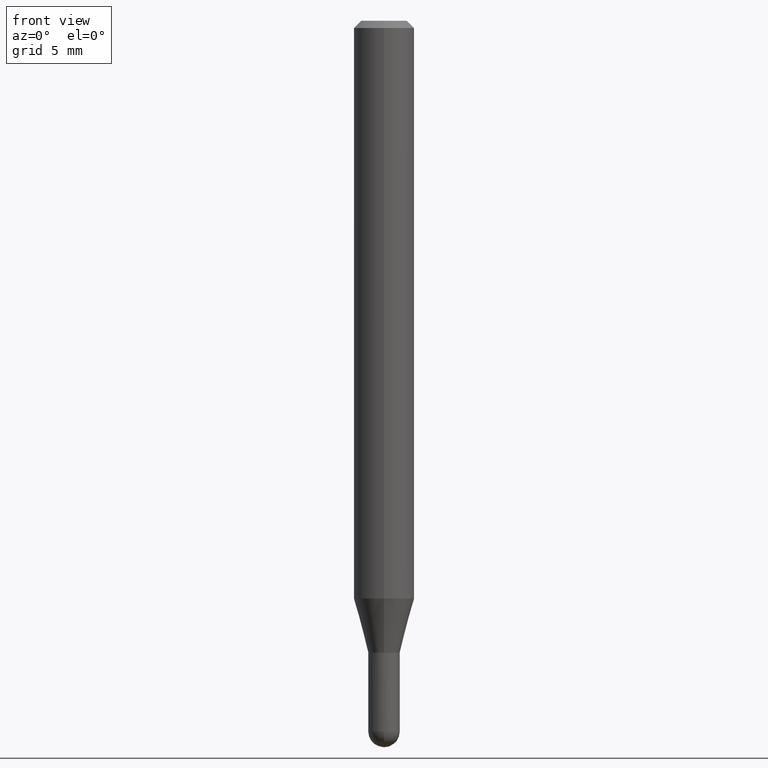
[diagram: clean part render]
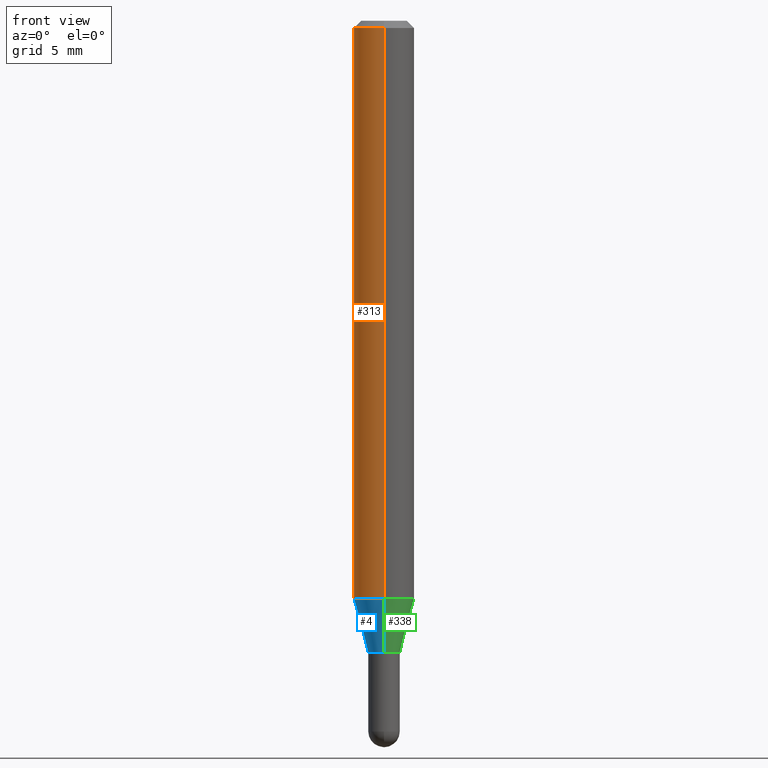
[diagram: same view with three faces highlighted in distinct colors, each labeled with its STEP entity id]
A machine part, front view with three faces highlighted in distinct colors.
Their STEP definitions:

[orange] entity #313 — the highlighted cylindrical surface (edge-blend (fillet) strip) has radius 1.5875 mm, axis along (-0, 0, 1).
#1 = CARTESIAN_POINT ( 'NONE',  ( -4.364351673553916201E-16, -0.06250000000000000000, 2.182154729314660676E-16 ) ) ;
#6 = ORIENTED_EDGE ( 'NONE', *, *, #207, .T. ) ;
#11 = CIRCLE ( 'NONE', #283, 0.06250000000000000000 ) ;
#48 = CARTESIAN_POINT ( 'NONE',  ( 4.440892098500919026E-16, 0.06249999999999995143, -0.01500000000000028394 ) ) ;
#49 = VECTOR ( 'NONE', #433, 39.37007874015748143 ) ;
#63 = CARTESIAN_POINT ( 'NONE',  ( -4.364351673553912750E-16, -0.06250000000000005551, -0.01499999999999984852 ) ) ;
#64 = DIRECTION ( 'NONE',  ( -6.982962677686265922E-15, -1.000000000000000000, 3.483106191921935554E-15 ) ) ;
#73 = VERTEX_POINT ( 'NONE', #211 ) ;
#108 = DIRECTION ( 'NONE',  ( -2.445492389004576288E-29, 3.491447566903457476E-15, 1.000000000000000000 ) ) ;
#110 = EDGE_CURVE ( 'NONE', #158, #354, #355, .T. ) ;
#115 = CARTESIAN_POINT ( 'NONE',  ( -4.364351673553626788E-16, -0.06250000000000420497, -1.193038475772937090 ) ) ;
#147 = DIRECTION ( 'NONE',  ( -2.445492389004576288E-29, 3.491447566903457476E-15, 1.000000000000000000 ) ) ;
#158 = VERTEX_POINT ( 'NONE', #115 ) ;
#164 = AXIS2_PLACEMENT_3D ( 'NONE', #352, #108, #64 ) ;
#177 = CARTESIAN_POINT ( 'NONE',  ( 2.917566512292338877E-29, -4.165431283459630841E-15, -1.193038475772937312 ) ) ;
#207 = EDGE_CURVE ( 'NONE', #73, #158, #11, .T. ) ;
#211 = CARTESIAN_POINT ( 'NONE',  ( 4.440892098500915082E-16, 0.06249999999999581585, -1.193038475772937534 ) ) ;
#225 = AXIS2_PLACEMENT_3D ( 'NONE', #386, #147, #418 ) ;
#256 = DIRECTION ( 'NONE',  ( -2.445492389004576288E-29, 3.491447566903457476E-15, 1.000000000000000000 ) ) ;
#260 = VERTEX_POINT ( 'NONE', #48 ) ;
#274 = EDGE_CURVE ( 'NONE', #260, #354, #415, .T. ) ;
#283 = AXIS2_PLACEMENT_3D ( 'NONE', #177, #256, #412 ) ;
#288 = ORIENTED_EDGE ( 'NONE', *, *, #274, .F. ) ;
#309 = CARTESIAN_POINT ( 'NONE',  ( 4.440892098500625669E-16, 0.06250000000000000000, -2.182154729314660676E-16 ) ) ;
#313 = ADVANCED_FACE ( 'NONE', ( #348 ), #504, .T. ) ;
#319 = DIRECTION ( 'NONE',  ( -2.445492389004576288E-29, 3.491447566903457082E-15, 1.000000000000000000 ) ) ;
#323 = ORIENTED_EDGE ( 'NONE', *, *, #110, .T. ) ;
#348 = FACE_OUTER_BOUND ( 'NONE', #369, .T. ) ;
#350 = LINE ( 'NONE', #309, #401 ) ;
#352 = CARTESIAN_POINT ( 'NONE',  ( 3.668238583506880511E-31, -5.237171350355208844E-17, -0.01500000000000006710 ) ) ;
#354 = VERTEX_POINT ( 'NONE', #63 ) ;
#355 = LINE ( 'NONE', #1, #49 ) ;
#369 = EDGE_LOOP ( 'NONE', ( #494, #6, #323, #288 ) ) ;
#372 = EDGE_CURVE ( 'NONE', #73, #260, #350, .T. ) ;
#386 = CARTESIAN_POINT ( 'NONE',  ( 0.000000000000000000, 0.000000000000000000, 0.000000000000000000 ) ) ;
#401 = VECTOR ( 'NONE', #319, 39.37007874015748143 ) ;
#412 = DIRECTION ( 'NONE',  ( -6.982962677686265922E-15, -1.000000000000000000, 4.370956789862821150E-15 ) ) ;
#415 = CIRCLE ( 'NONE', #164, 0.06250000000000000000 ) ;
#418 = DIRECTION ( 'NONE',  ( -6.982962677686265922E-15, -1.000000000000000000, 3.491447566903457082E-15 ) ) ;
#433 = DIRECTION ( 'NONE',  ( -2.445492389004576288E-29, 3.491447566903457082E-15, 1.000000000000000000 ) ) ;
#494 = ORIENTED_EDGE ( 'NONE', *, *, #372, .F. ) ;
#504 = CYLINDRICAL_SURFACE ( 'NONE', #225, 0.06250000000000000000 ) ;

[blue] entity #4 — the highlighted conical surface has half-angle 15 deg.
#4 = ADVANCED_FACE ( 'NONE', ( #68 ), #88, .T. ) ;
#11 = CIRCLE ( 'NONE', #283, 0.06250000000000000000 ) ;
#39 = VERTEX_POINT ( 'NONE', #310 ) ;
#47 = ORIENTED_EDGE ( 'NONE', *, *, #295, .F. ) ;
#53 = AXIS2_PLACEMENT_3D ( 'NONE', #204, #430, #278 ) ;
#56 = VERTEX_POINT ( 'NONE', #193 ) ;
#68 = FACE_OUTER_BOUND ( 'NONE', #237, .T. ) ;
#71 = CARTESIAN_POINT ( 'NONE',  ( 3.191367567650972338E-29, -4.556339074809012404E-15, -1.305000000000000160 ) ) ;
#73 = VERTEX_POINT ( 'NONE', #211 ) ;
#88 = CONICAL_SURFACE ( 'NONE', #100, 0.03249999999999991784, 0.2617993877991578455 ) ;
#94 = ORIENTED_EDGE ( 'NONE', *, *, #151, .T. ) ;
#100 = AXIS2_PLACEMENT_3D ( 'NONE', #71, #122, #356 ) ;
#106 = DIRECTION ( 'NONE',  ( 1.839019923739652380E-15, 0.2588190451025322858, 0.9659258262890650926 ) ) ;
#115 = CARTESIAN_POINT ( 'NONE',  ( -4.364351673553626788E-16, -0.06250000000000420497, -1.193038475772937090 ) ) ;
#118 = ORIENTED_EDGE ( 'NONE', *, *, #460, .T. ) ;
#122 = DIRECTION ( 'NONE',  ( -2.445492389004576288E-29, 3.491447566903457476E-15, 1.000000000000000000 ) ) ;
#148 = VECTOR ( 'NONE', #106, 39.37007874015748143 ) ;
#151 = EDGE_CURVE ( 'NONE', #39, #158, #153, .T. ) ;
#153 = LINE ( 'NONE', #200, #266 ) ;
#158 = VERTEX_POINT ( 'NONE', #115 ) ;
#177 = CARTESIAN_POINT ( 'NONE',  ( 2.917566512292338877E-29, -4.165431283459630841E-15, -1.193038475772937312 ) ) ;
#193 = CARTESIAN_POINT ( 'NONE',  ( 3.375077994860778155E-16, 0.03249999999999536593, -1.305000000000000160 ) ) ;
#200 = CARTESIAN_POINT ( 'NONE',  ( -2.269462870247711572E-16, -0.03250000000000446976, -1.305000000000000160 ) ) ;
#204 = CARTESIAN_POINT ( 'NONE',  ( 3.191367567650972338E-29, -4.556339074809012404E-15, -1.305000000000000160 ) ) ;
#207 = EDGE_CURVE ( 'NONE', #73, #158, #11, .T. ) ;
#211 = CARTESIAN_POINT ( 'NONE',  ( 4.440892098500915082E-16, 0.06249999999999581585, -1.193038475772937534 ) ) ;
#227 = LINE ( 'NONE', #466, #148 ) ;
#237 = EDGE_LOOP ( 'NONE', ( #47, #118, #94, #279 ) ) ;
#256 = DIRECTION ( 'NONE',  ( -2.445492389004576288E-29, 3.491447566903457476E-15, 1.000000000000000000 ) ) ;
#266 = VECTOR ( 'NONE', #468, 39.37007874015748854 ) ;
#278 = DIRECTION ( 'NONE',  ( -6.982962677686265922E-15, -1.000000000000000000, 0.000000000000000000 ) ) ;
#279 = ORIENTED_EDGE ( 'NONE', *, *, #207, .F. ) ;
#283 = AXIS2_PLACEMENT_3D ( 'NONE', #177, #256, #412 ) ;
#295 = EDGE_CURVE ( 'NONE', #56, #73, #227, .T. ) ;
#308 = CIRCLE ( 'NONE', #53, 0.03249999999999991784 ) ;
#310 = CARTESIAN_POINT ( 'NONE',  ( -2.269462870247711572E-16, -0.03250000000000446976, -1.305000000000000160 ) ) ;
#356 = DIRECTION ( 'NONE',  ( -6.982962677686265922E-15, -1.000000000000000000, 0.000000000000000000 ) ) ;
#412 = DIRECTION ( 'NONE',  ( -6.982962677686265922E-15, -1.000000000000000000, 4.370956789862821150E-15 ) ) ;
#430 = DIRECTION ( 'NONE',  ( -2.445492389004576288E-29, 3.491447566903457476E-15, 1.000000000000000000 ) ) ;
#460 = EDGE_CURVE ( 'NONE', #56, #39, #308, .T. ) ;
#466 = CARTESIAN_POINT ( 'NONE',  ( 2.309263891220638762E-16, 0.03249999999999536593, -1.305000000000000160 ) ) ;
#468 = DIRECTION ( 'NONE',  ( -1.807323732225381415E-15, -0.2588190451025255134, 0.9659258262890669799 ) ) ;

[green] entity #338 — the highlighted conical surface has half-angle 15 deg.
#7 = EDGE_CURVE ( 'NONE', #39, #56, #328, .T. ) ;
#30 = DIRECTION ( 'NONE',  ( -6.982962677686265922E-15, -1.000000000000000000, 0.000000000000000000 ) ) ;
#39 = VERTEX_POINT ( 'NONE', #310 ) ;
#56 = VERTEX_POINT ( 'NONE', #193 ) ;
#66 = DIRECTION ( 'NONE',  ( -6.982962677686265922E-15, -1.000000000000000000, 4.370956789862821150E-15 ) ) ;
#73 = VERTEX_POINT ( 'NONE', #211 ) ;
#95 = ORIENTED_EDGE ( 'NONE', *, *, #7, .T. ) ;
#103 = CARTESIAN_POINT ( 'NONE',  ( 3.191367567650972338E-29, -4.556339074809012404E-15, -1.305000000000000160 ) ) ;
#106 = DIRECTION ( 'NONE',  ( 1.839019923739652380E-15, 0.2588190451025322858, 0.9659258262890650926 ) ) ;
#107 = AXIS2_PLACEMENT_3D ( 'NONE', #103, #382, #307 ) ;
#115 = CARTESIAN_POINT ( 'NONE',  ( -4.364351673553626788E-16, -0.06250000000000420497, -1.193038475772937090 ) ) ;
#131 = EDGE_CURVE ( 'NONE', #158, #73, #505, .T. ) ;
#143 = FACE_OUTER_BOUND ( 'NONE', #277, .T. ) ;
#148 = VECTOR ( 'NONE', #106, 39.37007874015748143 ) ;
#151 = EDGE_CURVE ( 'NONE', #39, #158, #153, .T. ) ;
#153 = LINE ( 'NONE', #200, #266 ) ;
#158 = VERTEX_POINT ( 'NONE', #115 ) ;
#159 = DIRECTION ( 'NONE',  ( -2.445492389004576288E-29, 3.491447566903457476E-15, 1.000000000000000000 ) ) ;
#193 = CARTESIAN_POINT ( 'NONE',  ( 3.375077994860778155E-16, 0.03249999999999536593, -1.305000000000000160 ) ) ;
#200 = CARTESIAN_POINT ( 'NONE',  ( -2.269462870247711572E-16, -0.03250000000000446976, -1.305000000000000160 ) ) ;
#211 = CARTESIAN_POINT ( 'NONE',  ( 4.440892098500915082E-16, 0.06249999999999581585, -1.193038475772937534 ) ) ;
#216 = ORIENTED_EDGE ( 'NONE', *, *, #131, .F. ) ;
#227 = LINE ( 'NONE', #466, #148 ) ;
#235 = ORIENTED_EDGE ( 'NONE', *, *, #151, .F. ) ;
#266 = VECTOR ( 'NONE', #468, 39.37007874015748854 ) ;
#271 = CARTESIAN_POINT ( 'NONE',  ( 2.917566512292338877E-29, -4.165431283459630841E-15, -1.193038475772937312 ) ) ;
#277 = EDGE_LOOP ( 'NONE', ( #95, #286, #216, #235 ) ) ;
#286 = ORIENTED_EDGE ( 'NONE', *, *, #295, .T. ) ;
#295 = EDGE_CURVE ( 'NONE', #56, #73, #227, .T. ) ;
#307 = DIRECTION ( 'NONE',  ( -6.982962677686265922E-15, -1.000000000000000000, 0.000000000000000000 ) ) ;
#310 = CARTESIAN_POINT ( 'NONE',  ( -2.269462870247711572E-16, -0.03250000000000446976, -1.305000000000000160 ) ) ;
#328 = CIRCLE ( 'NONE', #452, 0.03249999999999991784 ) ;
#338 = ADVANCED_FACE ( 'NONE', ( #143 ), #490, .T. ) ;
#375 = AXIS2_PLACEMENT_3D ( 'NONE', #271, #425, #66 ) ;
#382 = DIRECTION ( 'NONE',  ( -2.445492389004576288E-29, 3.491447566903457476E-15, 1.000000000000000000 ) ) ;
#425 = DIRECTION ( 'NONE',  ( -2.445492389004576288E-29, 3.491447566903457476E-15, 1.000000000000000000 ) ) ;
#437 = CARTESIAN_POINT ( 'NONE',  ( 3.191367567650972338E-29, -4.556339074809012404E-15, -1.305000000000000160 ) ) ;
#452 = AXIS2_PLACEMENT_3D ( 'NONE', #437, #159, #30 ) ;
#466 = CARTESIAN_POINT ( 'NONE',  ( 2.309263891220638762E-16, 0.03249999999999536593, -1.305000000000000160 ) ) ;
#468 = DIRECTION ( 'NONE',  ( -1.807323732225381415E-15, -0.2588190451025255134, 0.9659258262890669799 ) ) ;
#490 = CONICAL_SURFACE ( 'NONE', #107, 0.03249999999999991784, 0.2617993877991578455 ) ;
#505 = CIRCLE ( 'NONE', #375, 0.06250000000000000000 ) ;